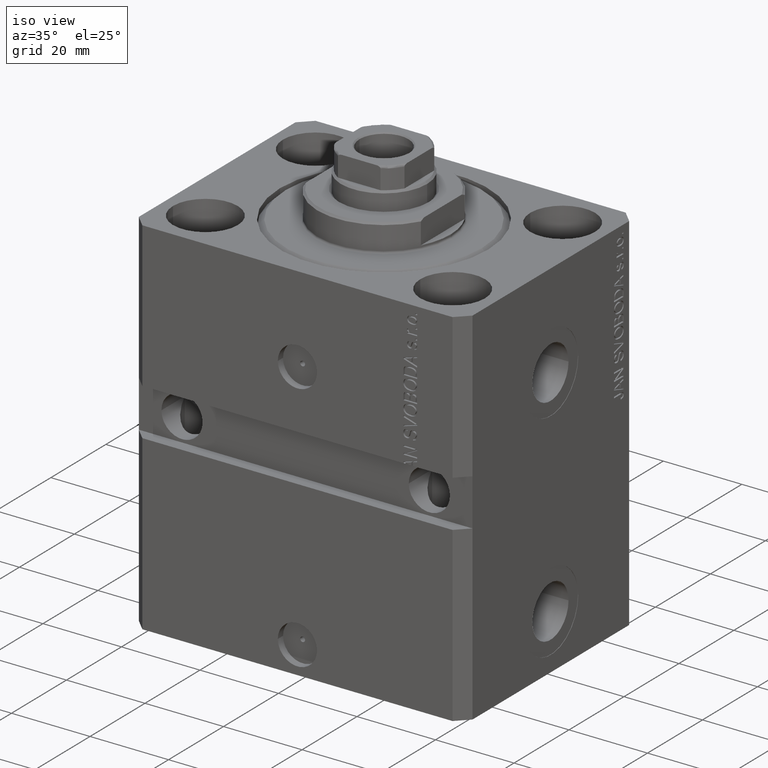
[diagram: clean part render]
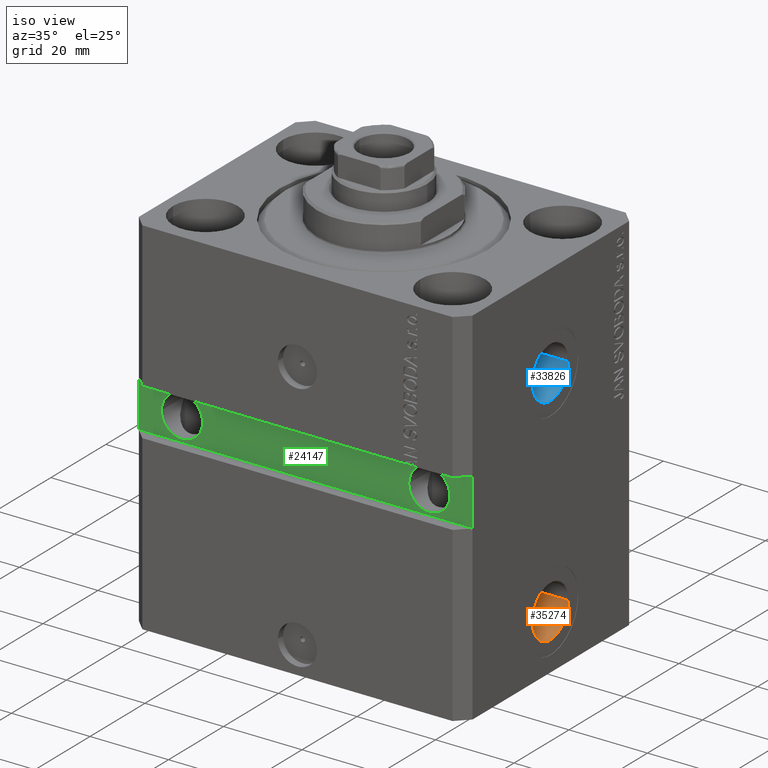
[diagram: same view with three faces highlighted in distinct colors, each labeled with its STEP entity id]
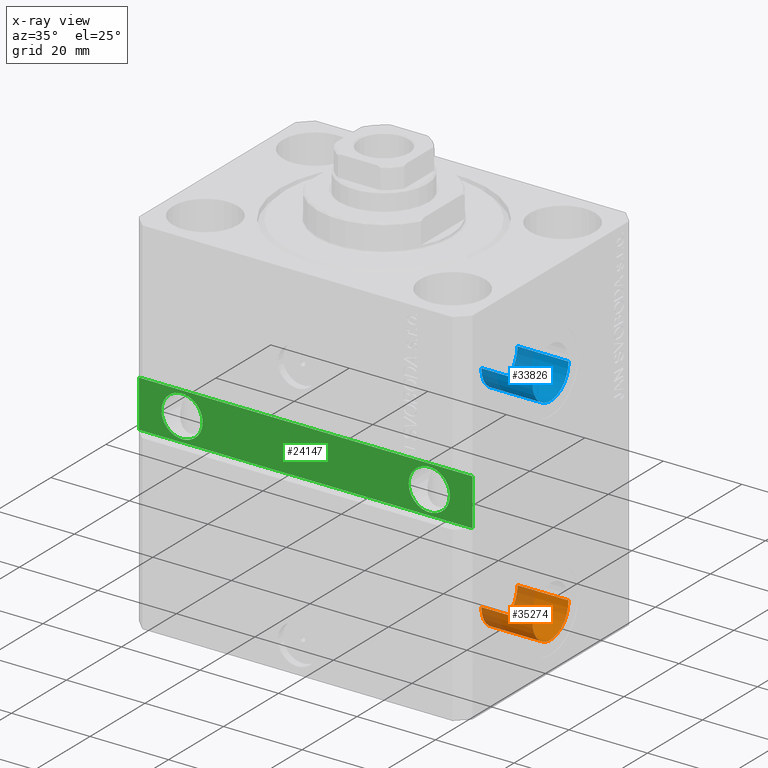
[diagram: x-ray of the same camera — body ghosted, the three highlighted faces saturated]
A machine part, iso view with three faces highlighted in distinct colors.
The next image is the same camera in x-ray (body ghosted, the three faces saturated) — at least one of them is partly hidden behind the body in this view.
Their STEP definitions:

[orange] entity #35274 — the highlighted cylindrical surface (edge-blend (fillet) strip) has radius 6.58 mm, axis along (1, -0, 0).
#320 = EDGE_CURVE ( 'NONE', #10666, #22546, #40680, .T. ) ;
#3131 = AXIS2_PLACEMENT_3D ( 'NONE', #6266, #14060, #13845 ) ;
#3565 = CIRCLE ( 'NONE', #24070, 6.579999999999987637 ) ;
#5763 = CARTESIAN_POINT ( 'NONE',  ( 29.40000000000035385, 6.579999999999785132, -79.00000000000000000 ) ) ;
#6266 = CARTESIAN_POINT ( 'NONE',  ( 29.40000000000026503, -2.028760275683516938E-13, -79.00000000000000000 ) ) ;
#10324 = CARTESIAN_POINT ( 'NONE',  ( 42.40000000000035385, 6.579999999999611049, -79.00000000000000000 ) ) ;
#10522 = DIRECTION ( 'NONE',  ( 1.370906090437600963E-14, 1.000000000000000000, 0.000000000000000000 ) ) ;
#10666 = VERTEX_POINT ( 'NONE', #17457 ) ;
#11793 = EDGE_CURVE ( 'NONE', #10666, #16198, #25369, .T. ) ;
#12659 = VERTEX_POINT ( 'NONE', #10324 ) ;
#12895 = LINE ( 'NONE', #5763, #19672 ) ;
#13603 = CARTESIAN_POINT ( 'NONE',  ( 29.40000000000035385, 6.579999999999785132, -79.00000000000000000 ) ) ;
#13845 = DIRECTION ( 'NONE',  ( 1.318178933113077855E-14, 1.000000000000000000, 0.000000000000000000 ) ) ;
#14060 = DIRECTION ( 'NONE',  ( 1.000000000000000000, -1.334402673828349292E-14, -0.000000000000000000 ) ) ;
#15821 = ORIENTED_EDGE ( 'NONE', *, *, #17869, .F. ) ;
#16146 = DIRECTION ( 'NONE',  ( 1.000000000000000000, -1.334402673828349292E-14, -0.000000000000000000 ) ) ;
#16198 = VERTEX_POINT ( 'NONE', #13603 ) ;
#16915 = CARTESIAN_POINT ( 'NONE',  ( 29.40000000000026503, -2.028760275683516938E-13, -79.00000000000000000 ) ) ;
#17457 = CARTESIAN_POINT ( 'NONE',  ( 29.40000000000017977, -6.580000000000191029, -79.00000000000000000 ) ) ;
#17869 = EDGE_CURVE ( 'NONE', #16198, #12659, #12895, .T. ) ;
#19672 = VECTOR ( 'NONE', #30779, 1000.000000000000000 ) ;
#22546 = VERTEX_POINT ( 'NONE', #29349 ) ;
#24070 = AXIS2_PLACEMENT_3D ( 'NONE', #38264, #31626, #10522 ) ;
#24251 = ORIENTED_EDGE ( 'NONE', *, *, #24455, .T. ) ;
#24455 = EDGE_CURVE ( 'NONE', #22546, #12659, #3565, .T. ) ;
#25369 = CIRCLE ( 'NONE', #34901, 6.579999999999987637 ) ;
#27619 = CARTESIAN_POINT ( 'NONE',  ( 29.40000000000017977, -6.580000000000191029, -79.00000000000000000 ) ) ;
#28057 = FACE_OUTER_BOUND ( 'NONE', #44019, .T. ) ;
#29349 = CARTESIAN_POINT ( 'NONE',  ( 42.40000000000017621, -6.580000000000363336, -79.00000000000000000 ) ) ;
#30779 = DIRECTION ( 'NONE',  ( 1.000000000000000000, -1.334402673828349292E-14, -0.000000000000000000 ) ) ;
#31626 = DIRECTION ( 'NONE',  ( 1.000000000000000000, -1.334402673828349134E-14, 0.000000000000000000 ) ) ;
#33340 = ORIENTED_EDGE ( 'NONE', *, *, #11793, .F. ) ;
#34350 = DIRECTION ( 'NONE',  ( 1.000000000000000000, -1.334402673828349134E-14, 0.000000000000000000 ) ) ;
#34798 = DIRECTION ( 'NONE',  ( 1.318178933113077855E-14, 1.000000000000000000, 0.000000000000000000 ) ) ;
#34901 = AXIS2_PLACEMENT_3D ( 'NONE', #16915, #34350, #34798 ) ;
#35274 = ADVANCED_FACE ( 'NONE', ( #28057 ), #42023, .F. ) ;
#38264 = CARTESIAN_POINT ( 'NONE',  ( 42.40000000000026148, -3.763483751660370480E-13, -79.00000000000000000 ) ) ;
#40680 = LINE ( 'NONE', #27619, #44922 ) ;
#42023 = CYLINDRICAL_SURFACE ( 'NONE', #3131, 6.579999999999987637 ) ;
#44019 = EDGE_LOOP ( 'NONE', ( #33340, #44698, #24251, #15821 ) ) ;
#44698 = ORIENTED_EDGE ( 'NONE', *, *, #320, .T. ) ;
#44922 = VECTOR ( 'NONE', #16146, 1000.000000000000000 ) ;

[blue] entity #33826 — the highlighted cylindrical surface (edge-blend (fillet) strip) has radius 6.58 mm, axis along (1, -0, 0).
#384 = DIRECTION ( 'NONE',  ( 1.000000000000000000, -1.334402673828349292E-14, -0.000000000000000000 ) ) ;
#891 = AXIS2_PLACEMENT_3D ( 'NONE', #11397, #384, #36158 ) ;
#1862 = DIRECTION ( 'NONE',  ( 1.318178933113074700E-14, 1.000000000000000000, 0.000000000000000000 ) ) ;
#4027 = EDGE_CURVE ( 'NONE', #26069, #16369, #34061, .T. ) ;
#4488 = CARTESIAN_POINT ( 'NONE',  ( 42.40000000000017621, -6.580000000000378435, -24.00000000000000000 ) ) ;
#5519 = AXIS2_PLACEMENT_3D ( 'NONE', #40057, #18960, #32969 ) ;
#7791 = CARTESIAN_POINT ( 'NONE',  ( 29.40000000000035385, 6.579999999999799343, -24.00000000000000000 ) ) ;
#7934 = CYLINDRICAL_SURFACE ( 'NONE', #891, 6.580000000000002736 ) ;
#8745 = DIRECTION ( 'NONE',  ( 1.000000000000000000, -1.334402673828349134E-14, 0.000000000000000000 ) ) ;
#9293 = EDGE_CURVE ( 'NONE', #35583, #29494, #33376, .T. ) ;
#11397 = CARTESIAN_POINT ( 'NONE',  ( 29.40000000000026503, -2.028760275683516938E-13, -24.00000000000000000 ) ) ;
#14352 = ORIENTED_EDGE ( 'NONE', *, *, #9293, .T. ) ;
#15316 = DIRECTION ( 'NONE',  ( 1.000000000000000000, -1.334402673828349292E-14, -0.000000000000000000 ) ) ;
#16369 = VERTEX_POINT ( 'NONE', #25620 ) ;
#16398 = VECTOR ( 'NONE', #15316, 1000.000000000000000 ) ;
#17196 = AXIS2_PLACEMENT_3D ( 'NONE', #27328, #8745, #1862 ) ;
#18489 = FACE_OUTER_BOUND ( 'NONE', #28156, .T. ) ;
#18802 = DIRECTION ( 'NONE',  ( 1.000000000000000000, -1.334402673828349292E-14, -0.000000000000000000 ) ) ;
#18960 = DIRECTION ( 'NONE',  ( 1.000000000000000000, -1.334402673828349134E-14, 0.000000000000000000 ) ) ;
#25620 = CARTESIAN_POINT ( 'NONE',  ( 29.40000000000035385, 6.579999999999799343, -24.00000000000000000 ) ) ;
#25898 = VECTOR ( 'NONE', #18802, 1000.000000000000000 ) ;
#26069 = VERTEX_POINT ( 'NONE', #32545 ) ;
#26679 = ORIENTED_EDGE ( 'NONE', *, *, #4027, .F. ) ;
#27328 = CARTESIAN_POINT ( 'NONE',  ( 29.40000000000026503, -2.028760275683516938E-13, -24.00000000000000000 ) ) ;
#28156 = EDGE_LOOP ( 'NONE', ( #26679, #34216, #14352, #43832 ) ) ;
#29494 = VERTEX_POINT ( 'NONE', #31194 ) ;
#29592 = LINE ( 'NONE', #7791, #25898 ) ;
#31194 = CARTESIAN_POINT ( 'NONE',  ( 42.40000000000035385, 6.579999999999626148, -24.00000000000000000 ) ) ;
#32545 = CARTESIAN_POINT ( 'NONE',  ( 29.40000000000017977, -6.580000000000205240, -24.00000000000000000 ) ) ;
#32969 = DIRECTION ( 'NONE',  ( 1.370906090437597808E-14, 1.000000000000000000, 0.000000000000000000 ) ) ;
#33376 = CIRCLE ( 'NONE', #5519, 6.580000000000002736 ) ;
#33826 = ADVANCED_FACE ( 'NONE', ( #18489 ), #7934, .F. ) ;
#34061 = CIRCLE ( 'NONE', #17196, 6.580000000000002736 ) ;
#34216 = ORIENTED_EDGE ( 'NONE', *, *, #41833, .T. ) ;
#35583 = VERTEX_POINT ( 'NONE', #4488 ) ;
#36158 = DIRECTION ( 'NONE',  ( 1.318178933113074700E-14, 1.000000000000000000, 0.000000000000000000 ) ) ;
#39616 = CARTESIAN_POINT ( 'NONE',  ( 29.40000000000017977, -6.580000000000205240, -24.00000000000000000 ) ) ;
#40057 = CARTESIAN_POINT ( 'NONE',  ( 42.40000000000026148, -3.763483751660370480E-13, -24.00000000000000000 ) ) ;
#41409 = EDGE_CURVE ( 'NONE', #16369, #29494, #29592, .T. ) ;
#41833 = EDGE_CURVE ( 'NONE', #26069, #35583, #42596, .T. ) ;
#42596 = LINE ( 'NONE', #39616, #16398 ) ;
#43832 = ORIENTED_EDGE ( 'NONE', *, *, #41409, .F. ) ;

[green] entity #24147 — the highlighted planar face has unit normal (0, -1, 0).
#178 = DIRECTION ( 'NONE',  ( 0.000000000000000000, 0.000000000000000000, -1.000000000000000000 ) ) ;
#1347 = LINE ( 'NONE', #5469, #30128 ) ;
#1434 = AXIS2_PLACEMENT_3D ( 'NONE', #19275, #39919, #40146 ) ;
#5100 = CIRCLE ( 'NONE', #1434, 5.249999999999997335 ) ;
#5128 = DIRECTION ( 'NONE',  ( 1.000000000000000000, 0.000000000000000000, 0.000000000000000000 ) ) ;
#5369 = ORIENTED_EDGE ( 'NONE', *, *, #10380, .F. ) ;
#5469 = CARTESIAN_POINT ( 'NONE',  ( 42.50000000000001421, -28.49999999999999289, -48.99999999999999289 ) ) ;
#7053 = VERTEX_POINT ( 'NONE', #18131 ) ;
#7333 = CARTESIAN_POINT ( 'NONE',  ( 42.50000000000001421, -28.49999999999999289, -36.99999999999998579 ) ) ;
#7593 = DIRECTION ( 'NONE',  ( -1.000000000000000000, -1.632680918566406300E-16, -2.449021377849609204E-16 ) ) ;
#8106 = ORIENTED_EDGE ( 'NONE', *, *, #23529, .T. ) ;
#8918 = CARTESIAN_POINT ( 'NONE',  ( -42.50000000000000000, -28.50000000000000711, -48.99999999999999289 ) ) ;
#9031 = DIRECTION ( 'NONE',  ( 1.101411730780568590E-16, -1.000000000000000000, 0.000000000000000000 ) ) ;
#9337 = DIRECTION ( 'NONE',  ( 1.101411730780568590E-16, -1.000000000000000000, 0.000000000000000000 ) ) ;
#9488 = EDGE_CURVE ( 'NONE', #7053, #23056, #15057, .T. ) ;
#9556 = DIRECTION ( 'NONE',  ( 1.037025423586453699E-16, -1.000000000000000000, 1.848892746611746419E-32 ) ) ;
#9778 = ORIENTED_EDGE ( 'NONE', *, *, #26518, .F. ) ;
#9970 = PLANE ( 'NONE',  #42348 ) ;
#10380 = EDGE_CURVE ( 'NONE', #23459, #17896, #27549, .T. ) ;
#10971 = CARTESIAN_POINT ( 'NONE',  ( -26.24999999999998934, -28.50000000000000355, -43.00000000000000000 ) ) ;
#13448 = EDGE_LOOP ( 'NONE', ( #41489, #9778 ) ) ;
#13602 = CARTESIAN_POINT ( 'NONE',  ( 42.50000000000001421, -28.49999999999999289, -36.99999999999998579 ) ) ;
#14927 = EDGE_CURVE ( 'NONE', #17896, #23459, #26955, .T. ) ;
#15057 = CIRCLE ( 'NONE', #18716, 5.249999999999997335 ) ;
#15961 = ORIENTED_EDGE ( 'NONE', *, *, #21573, .T. ) ;
#15989 = CARTESIAN_POINT ( 'NONE',  ( -31.49999999999998579, -28.50000000000000355, -43.00000000000000000 ) ) ;
#16575 = AXIS2_PLACEMENT_3D ( 'NONE', #15989, #9337, #29992 ) ;
#16795 = CARTESIAN_POINT ( 'NONE',  ( 42.50000000000001421, -28.49999999999999289, -48.99999999999999289 ) ) ;
#16937 = VERTEX_POINT ( 'NONE', #8918 ) ;
#17513 = FACE_BOUND ( 'NONE', #25999, .T. ) ;
#17896 = VERTEX_POINT ( 'NONE', #10971 ) ;
#18131 = CARTESIAN_POINT ( 'NONE',  ( 36.75000000000001421, -28.49999999999999645, -43.00000000000000000 ) ) ;
#18716 = AXIS2_PLACEMENT_3D ( 'NONE', #21000, #9556, #23540 ) ;
#19275 = CARTESIAN_POINT ( 'NONE',  ( 31.50000000000001421, -28.49999999999999645, -43.00000000000000000 ) ) ;
#21000 = CARTESIAN_POINT ( 'NONE',  ( 31.50000000000001421, -28.49999999999999645, -43.00000000000000000 ) ) ;
#21154 = VECTOR ( 'NONE', #24611, 1000.000000000000000 ) ;
#21573 = EDGE_CURVE ( 'NONE', #16937, #27368, #31279, .T. ) ;
#22080 = ORIENTED_EDGE ( 'NONE', *, *, #14927, .F. ) ;
#23056 = VERTEX_POINT ( 'NONE', #40172 ) ;
#23208 = VERTEX_POINT ( 'NONE', #7333 ) ;
#23459 = VERTEX_POINT ( 'NONE', #44238 ) ;
#23529 = EDGE_CURVE ( 'NONE', #41861, #16937, #42149, .T. ) ;
#23540 = DIRECTION ( 'NONE',  ( 1.000000000000000000, 0.000000000000000000, 0.000000000000000000 ) ) ;
#23954 = FACE_OUTER_BOUND ( 'NONE', #38673, .T. ) ;
#24147 = ADVANCED_FACE ( 'NONE', ( #24845, #17513, #23954 ), #9970, .T. ) ;
#24173 = CARTESIAN_POINT ( 'NONE',  ( 4.790119779726142858E-15, -28.50000000000000000, 0.000000000000000000 ) ) ;
#24611 = DIRECTION ( 'NONE',  ( 1.000000000000000000, 1.632680918566406300E-16, 0.000000000000000000 ) ) ;
#24845 = FACE_BOUND ( 'NONE', #13448, .T. ) ;
#25035 = LINE ( 'NONE', #13602, #40418 ) ;
#25999 = EDGE_LOOP ( 'NONE', ( #22080, #5369 ) ) ;
#26518 = EDGE_CURVE ( 'NONE', #23056, #7053, #5100, .T. ) ;
#26932 = CARTESIAN_POINT ( 'NONE',  ( -31.49999999999998579, -28.50000000000000355, -43.00000000000000000 ) ) ;
#26955 = CIRCLE ( 'NONE', #35711, 5.249999999999997335 ) ;
#27368 = VERTEX_POINT ( 'NONE', #16795 ) ;
#27549 = CIRCLE ( 'NONE', #16575, 5.249999999999997335 ) ;
#29992 = DIRECTION ( 'NONE',  ( 1.000000000000000000, 0.000000000000000000, 0.000000000000000000 ) ) ;
#30128 = VECTOR ( 'NONE', #39879, 1000.000000000000000 ) ;
#31204 = EDGE_CURVE ( 'NONE', #27368, #23208, #1347, .T. ) ;
#31279 = LINE ( 'NONE', #35379, #21154 ) ;
#33208 = EDGE_CURVE ( 'NONE', #23208, #41861, #25035, .T. ) ;
#35038 = VECTOR ( 'NONE', #178, 1000.000000000000000 ) ;
#35108 = ORIENTED_EDGE ( 'NONE', *, *, #33208, .T. ) ;
#35379 = CARTESIAN_POINT ( 'NONE',  ( -42.50000000000000000, -28.50000000000000711, -48.99999999999999289 ) ) ;
#35711 = AXIS2_PLACEMENT_3D ( 'NONE', #26932, #9031, #5128 ) ;
#37934 = DIRECTION ( 'NONE',  ( 1.000000000000000000, 1.632680918566406300E-16, 0.000000000000000000 ) ) ;
#38484 = CARTESIAN_POINT ( 'NONE',  ( -42.50000000000000000, -28.50000000000000711, -37.00000000000000711 ) ) ;
#38673 = EDGE_LOOP ( 'NONE', ( #15961, #41252, #35108, #8106 ) ) ;
#39879 = DIRECTION ( 'NONE',  ( 0.000000000000000000, 0.000000000000000000, 1.000000000000000000 ) ) ;
#39919 = DIRECTION ( 'NONE',  ( 1.037025423586453699E-16, -1.000000000000000000, 1.848892746611746419E-32 ) ) ;
#40146 = DIRECTION ( 'NONE',  ( 1.000000000000000000, 0.000000000000000000, 0.000000000000000000 ) ) ;
#40172 = CARTESIAN_POINT ( 'NONE',  ( 26.25000000000001776, -28.49999999999999645, -43.00000000000000000 ) ) ;
#40418 = VECTOR ( 'NONE', #7593, 1000.000000000000000 ) ;
#41252 = ORIENTED_EDGE ( 'NONE', *, *, #31204, .T. ) ;
#41489 = ORIENTED_EDGE ( 'NONE', *, *, #9488, .F. ) ;
#41599 = DIRECTION ( 'NONE',  ( 1.632680918566406300E-16, -1.000000000000000000, 0.000000000000000000 ) ) ;
#41861 = VERTEX_POINT ( 'NONE', #44194 ) ;
#42149 = LINE ( 'NONE', #38484, #35038 ) ;
#42348 = AXIS2_PLACEMENT_3D ( 'NONE', #24173, #41599, #37934 ) ;
#44194 = CARTESIAN_POINT ( 'NONE',  ( -42.50000000000000000, -28.50000000000000711, -37.00000000000000711 ) ) ;
#44238 = CARTESIAN_POINT ( 'NONE',  ( -36.74999999999998579, -28.50000000000000355, -43.00000000000000000 ) ) ;